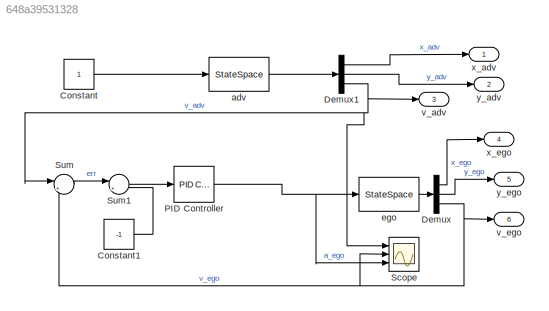
MODEL slx_648a39531328
KIND model
CONFIG AbsTol = auto
CONFIG EnableMultiTasking = off
CONFIG FixedStep = auto
CONFIG MaxStep = auto
CONFIG MinStep = auto
CONFIG RelTol = 1e-3
CONFIG SampleTimeConstraint = Unconstrained
CONFIG Solver = VariableStepAuto
CONFIG SolverName = VariableStepAuto
CONFIG StartTime = 0.0
CONFIG StopTime = 3
BLOCK [Constant] Constant
BLOCK [Constant] Constant1
  Value = -1
BLOCK [Demux] Demux
  Outputs = 3
  Ports = [1, 3]
BLOCK [Demux] Demux1
  Outputs = 3
  Ports = [1, 3]
BLOCK [Reference] PID Controller  REF=simulink/Continuous/PID Controller
  Ports = [1, 1]
  SourceBlock = simulink/Continuous/PID Controller
  SourceProductBaseCode = SL
  SourceType = PID 1dof
BLOCK [Scope] Scope
  Floating = off
  NumInputPorts = 3
  Ports = [3]
  ScopeSpecificationString = Simulink.scopes.TimeScopeBlockCfg('CurrentConfiguration', extmgr.ConfigurationSet(extmgr.Configuration('Core','General UI',true),extmgr.Configuration('Core','Source UI',true),extmgr.Configuration('Sources','WiredSimulink',true),extmgr.Configuration('Visuals','Time Domain',true,'SerializedDisplays',{struct('MinYLimReal','-2.61715','MaxYLimReal','3.62413','YLabelReal','','MinYLimMag','0.00000','MaxY...<+1366ch>
BLOCK [Sum] Sum
  Inputs = |+-
  Ports = [2, 1]
BLOCK [Sum] Sum1
  Inputs = |+-
  Ports = [2, 1]
BLOCK [StateSpace] adv
  A = [0 0 1 ; 0 0 0; 0 0 0]
  B = [0; 0; 1]
  C = [1 0 0;0 1 0; 0 0 1]
  D = zeros(3,1)
  InitialCondition = [-1;0;0]
  Ports = [1, 1]
BLOCK [StateSpace] ego
  A = [0 0 0 ; 0 0 1; 0 0 0]
  B = [0; 0; 1]
  C = [1 0 0 ; 0 1 0; 0 0 1]
  D = zeros(3,1)
  InitialCondition = [0; -1; 0];
  Ports = [1, 1]
BLOCK [Outport] v_adv
  Port = 3
BLOCK [Outport] v_ego
  Port = 6
BLOCK [Outport] x_adv
BLOCK [Outport] x_ego
  Port = 4
BLOCK [Outport] y_adv
  Port = 2
BLOCK [Outport] y_ego
  Port = 5
LINE Constant1:1 -> Sum1:2
LINE Constant:1 -> adv:1
LINE Demux1:1 -> x_adv:1
LINE Demux1:2 -> y_adv:1
NET Demux1:3 -> Scope:1, Sum:1, v_adv:1
LINE Demux:1 -> x_ego:1
LINE Demux:2 -> y_ego:1
NET Demux:3 -> Scope:2, Sum:2, v_ego:1
NET PID Controller:1 -> Scope:3, ego:1
LINE Sum1:1 -> PID Controller:1
LINE Sum:1 -> Sum1:1
LINE adv:1 -> Demux1:1
LINE ego:1 -> Demux:1
note: NET lines group one-source signal fan-out (src -> all destinations, sorted); 1:1 wires keep LINE
